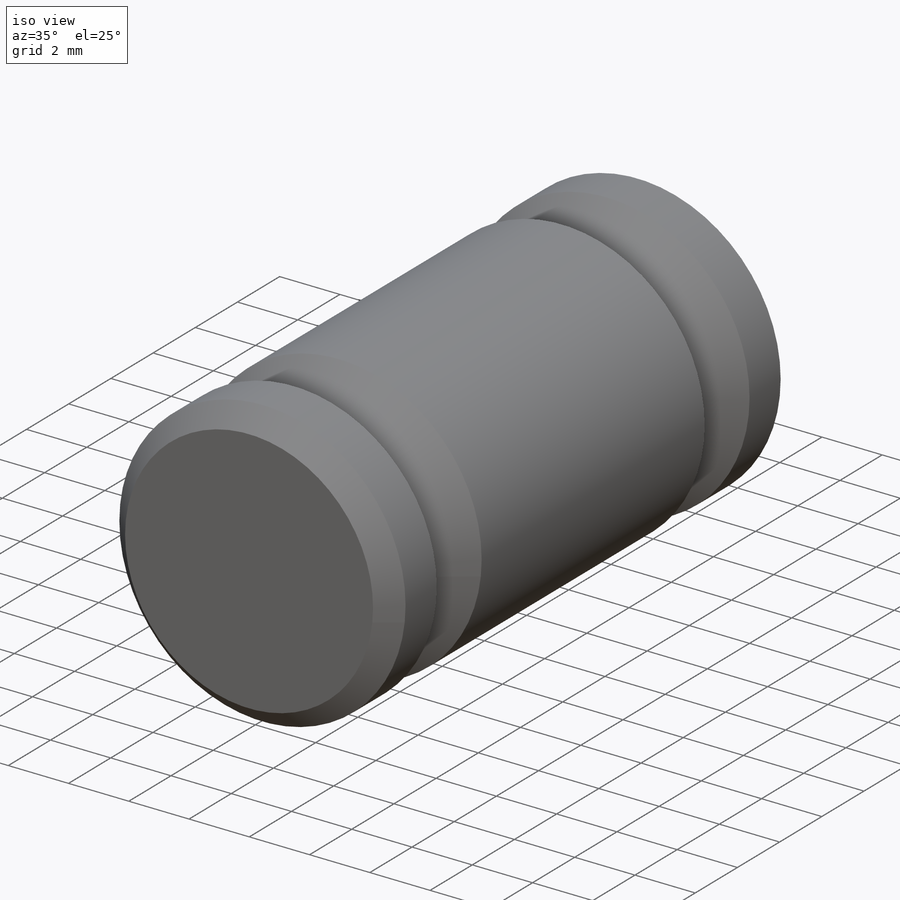
[diagram: iso view]
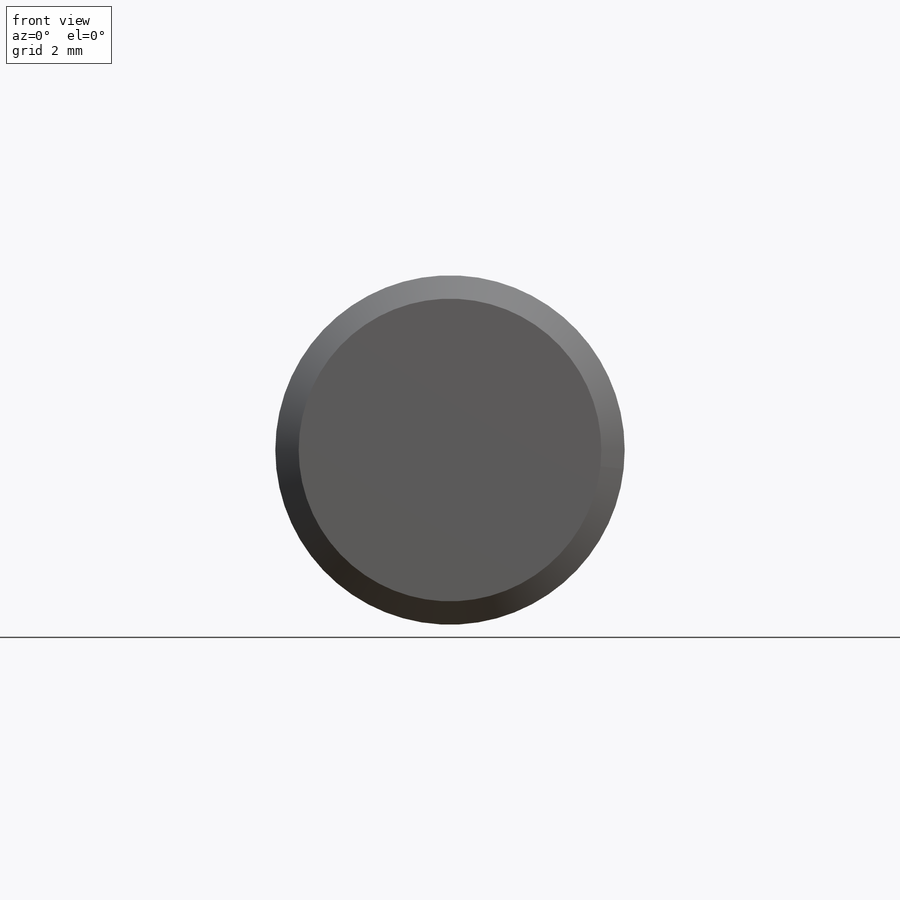
[diagram: front view]
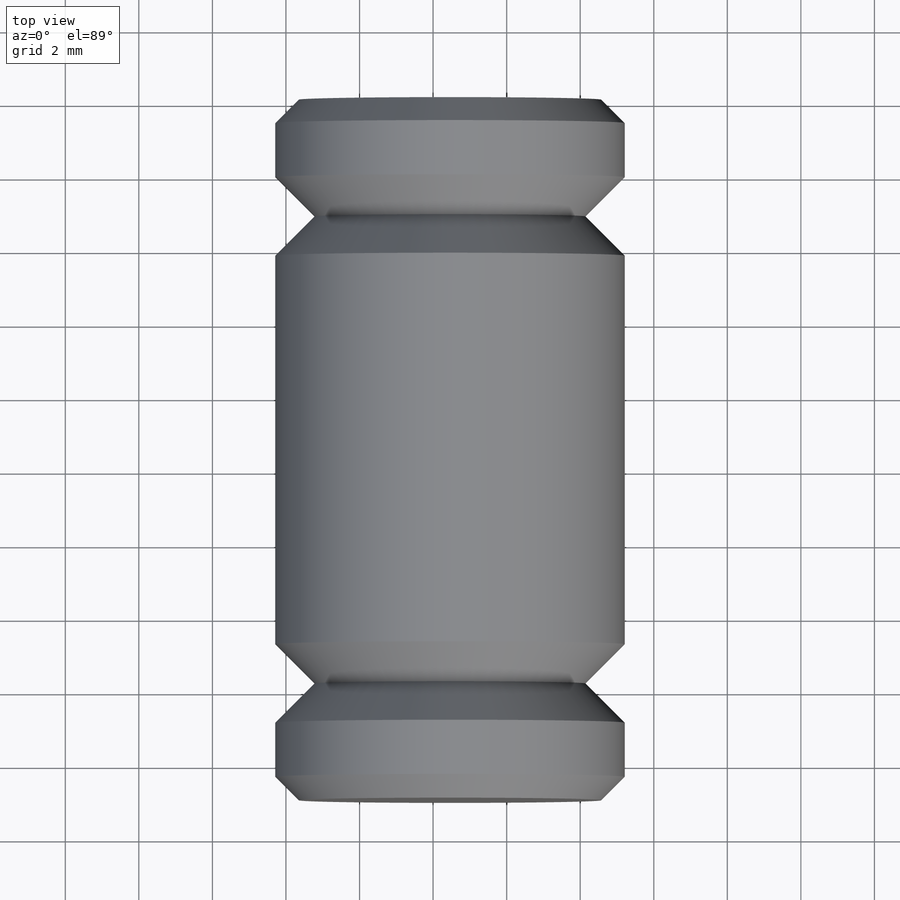
[diagram: top view]
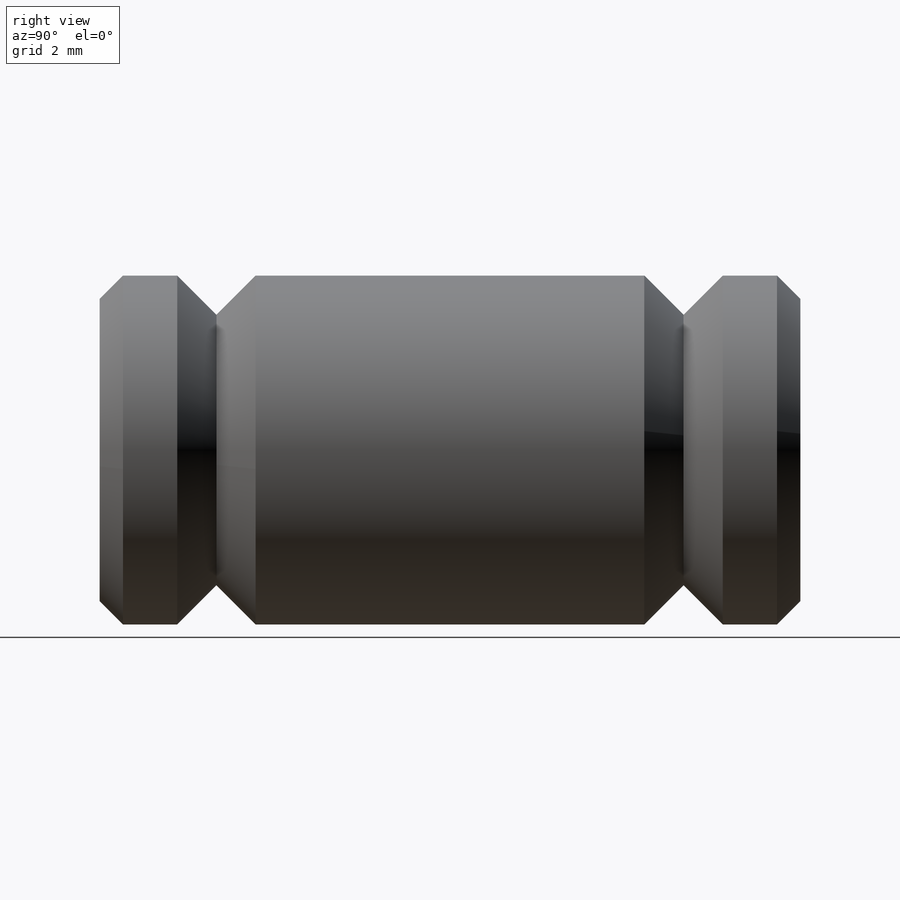
[diagram: right view]
SOLIDWORKS PART (.sldprt)
format: sldprt  version: not decoded by parser v0  size: 355,328 bytes
history: native  units: mm
features: sketch x3, material x1, extrude x1, cut_revolve x1, cut_extrude x1, chamfer x1, mirror x1 (+15 scaffold rows collapsed)
feature tree (24):
  scaffold x15  (default folders/planes/origin — collapsed)
  material  "Material <not specified>"
  sketch  "Sketch1"  dims[D1=9.4996mm]
  extrude  "Extrude1"  [1 undecoded]
  sketch  "Sketch2"  dims[D1=1.27mm D2=0.3175mm D3=6.35mm D4=3.683mm D5=1.905mm]
  cut_revolve  "Cut-Revolve1"  Angle=360deg
  sketch  "Sketch3"  dims[D1=0.0mm]
  cut_extrude  "Cut-Extrude1"  Depth=1.905mm
  chamfer  "Chamfer1"  Distance=0.635mm
  mirror  "Mirror1"
decode coverage: 6 of 8 modeling features carry decoded parameters
note: 1 parameter value undecoded
note: suppression state not decoded; provenance and decode notes live in map.json
